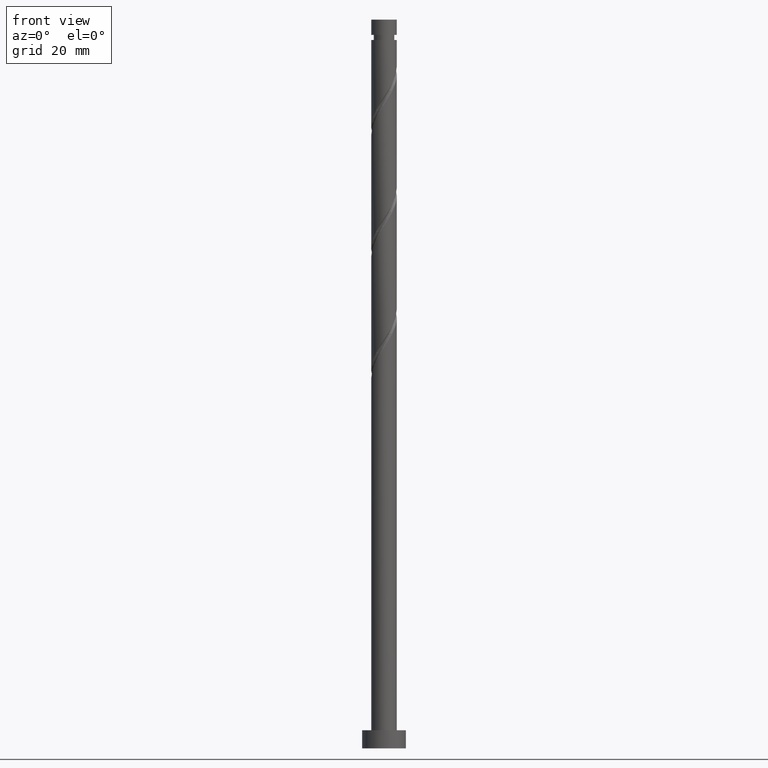
[diagram: clean part render]
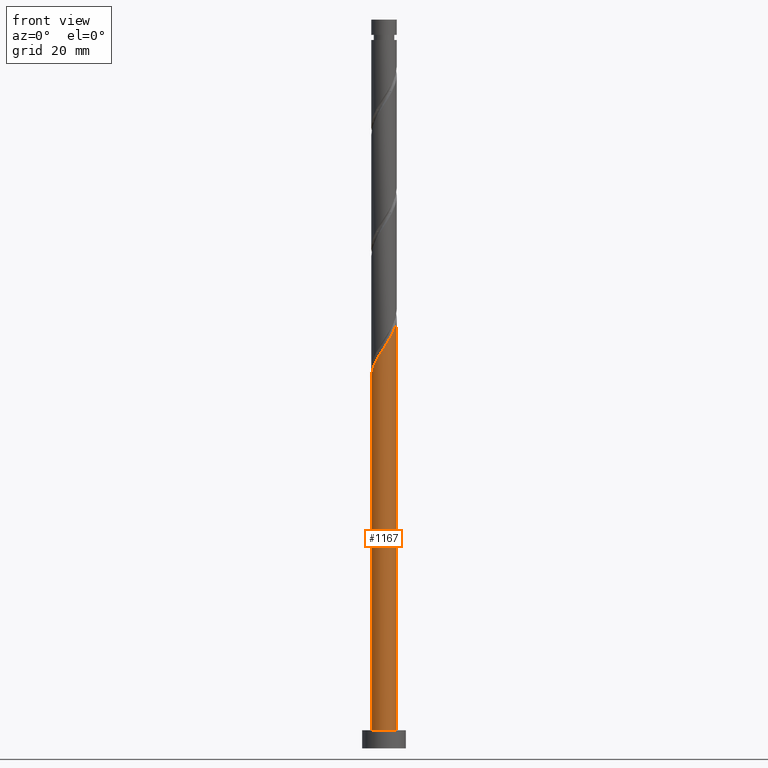
[diagram: same view with one face highlighted and labeled with its STEP entity id]
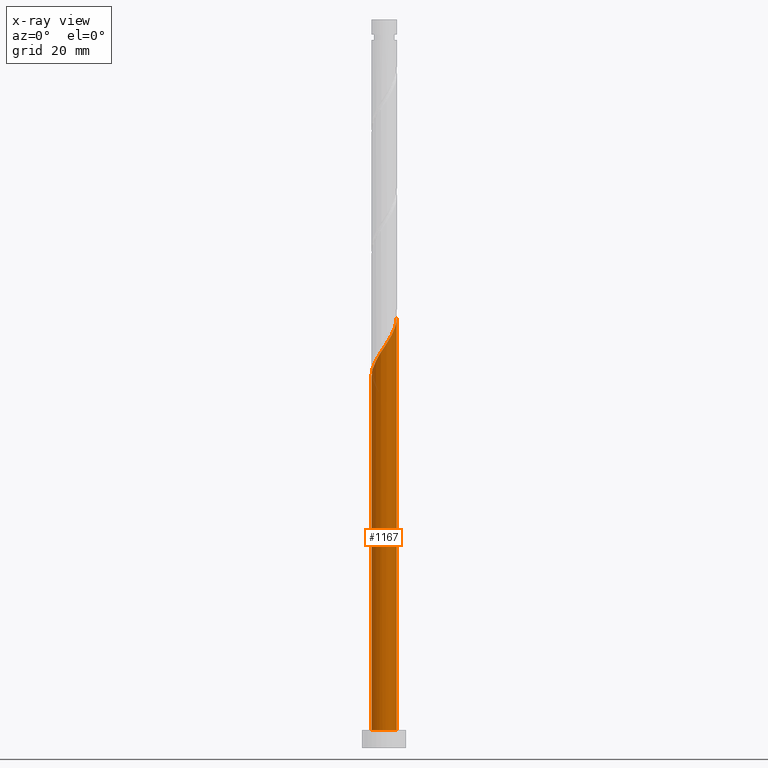
[diagram: x-ray of the same camera — body ghosted, the highlighted face saturated]
A machine part, front view. The second image highlights one B-rep face of the part: STEP entity #1167.
The next image is the same camera in x-ray: the body ghosted, the highlighted face saturated — about 0% of this face is hidden behind the body in this view.
In plain terms, the highlighted cylindrical surface (edge-blend (fillet) strip) has radius 3.5 mm, axis along (-0, -0, -1).
Its self-contained STEP definition (entity closure, byte-faithful):
#11 = DIRECTION ( 'NONE',  ( -0.000000000000000000, -0.000000000000000000, -1.000000000000000000 ) ) ;
#39 = CARTESIAN_POINT ( 'NONE',  ( -3.500000000000000000, 0.000000000000000000, 200.0000000000000000 ) ) ;
#70 = CARTESIAN_POINT ( 'NONE',  ( -3.500000000000004885, -2.272975235430241363E-15, 101.6620316862301650 ) ) ;
#132 =( BOUNDED_CURVE ( )  B_SPLINE_CURVE ( 2, ( #70, #751, #606, #1551, #182, #764, #1542, #1134, #1659, #345, #1023, #620, #477, #1008, #196, #1270, #1288, #463, #1150, #1669, #1521, #316, #734, #595, #1589, #660, #1305 ),
 .UNSPECIFIED., .F., .T. ) 
 B_SPLINE_CURVE_WITH_KNOTS ( ( 3, 2, 2, 2, 2, 2, 2, 2, 2, 2, 2, 2, 2, 3 ),
 ( 0.05453176698144624607, 0.06250000000000000000, 0.07291666666666662966, 0.08333333333333337034, 0.09375000000000000000, 0.1041666666666666297, 0.1145833333333333703, 0.1250000000000000000, 0.1354166666666666297, 0.1458333333333333703, 0.1562500000000000000, 0.1666666666666666297, 0.1770833333333333703, 0.1795317669814462391 ),
 .UNSPECIFIED. ) 
 CURVE ( )  GEOMETRIC_REPRESENTATION_ITEM ( )  RATIONAL_B_SPLINE_CURVE ( ( 0.9062941362546492741, 0.9031415850403534673, 0.9090909090909288226, 0.9013135103398473014, 0.9090909090909288226, 0.9013135103398473014, 0.9090909090909288226, 0.9013135103398473014, 0.9090909090909288226, 0.9013135103398473014, 0.9090909090909288226, 0.9013135103398473014, 0.9090909090909288226, 0.9013135103398473014, 0.9090909090909288226, 0.9013135103398473014, 0.9090909090909288226, 0.9013135103398473014, 0.9090909090909288226, 0.9013135103398473014, 0.9090909090909288226, 0.9013135103398473014, 0.9090909090909288226, 0.9013135103398473014, 0.9090909090909288226, 0.9072628343904225456, 0.9062941362546491630 ) ) 
 REPRESENTATION_ITEM ( '' )  );
#177 = EDGE_LOOP ( 'NONE', ( #1480, #990, #571, #522 ) ) ;
#182 = CARTESIAN_POINT ( 'NONE',  ( -3.132860395318851854, -1.560508168335766666, 104.1144872303291322 ) ) ;
#196 = CARTESIAN_POINT ( 'NONE',  ( 0.6964912059746349859, -3.430000000000005045, 111.0589316747736035 ) ) ;
#316 = CARTESIAN_POINT ( 'NONE',  ( 3.172338736701781681, -1.548737742842094312, 115.9200427858846751 ) ) ;
#345 = CARTESIAN_POINT ( 'NONE',  ( -1.548737742842094312, -3.172338736701781681, 107.5867094525513750 ) ) ;
#348 = VERTEX_POINT ( 'NONE', #1647 ) ;
#372 = CYLINDRICAL_SURFACE ( 'NONE', #1016, 3.500000000000000000 ) ;
#405 = DIRECTION ( 'NONE',  ( 0.000000000000000000, 0.000000000000000000, 1.000000000000000000 ) ) ;
#457 = DIRECTION ( 'NONE',  ( -0.000000000000000000, -0.000000000000000000, -1.000000000000000000 ) ) ;
#461 = AXIS2_PLACEMENT_3D ( 'NONE', #1738, #405, #796 ) ;
#463 = CARTESIAN_POINT ( 'NONE',  ( 1.972957063972127889, -2.927415597451915819, 113.1422650081069463 ) ) ;
#477 = CARTESIAN_POINT ( 'NONE',  ( -0.2149904810675291877, -3.493390773024167117, 109.6700427858847036 ) ) ;
#514 = CIRCLE ( 'NONE', #461, 3.500000000000000000 ) ;
#522 = ORIENTED_EDGE ( 'NONE', *, *, #1453, .T. ) ;
#536 = CARTESIAN_POINT ( 'NONE',  ( -3.500000000000000000, 0.000000000000000000, 5.000000000000000000 ) ) ;
#555 = CARTESIAN_POINT ( 'NONE',  ( 3.500000000000000000, 4.286263797015736595E-16, 200.0000000000000000 ) ) ;
#571 = ORIENTED_EDGE ( 'NONE', *, *, #1414, .T. ) ;
#594 = VECTOR ( 'NONE', #11, 1000.000000000000000 ) ;
#595 = CARTESIAN_POINT ( 'NONE',  ( 3.465086739234110702, -0.6749041013849255144, 117.3089316747736035 ) ) ;
#606 = CARTESIAN_POINT ( 'NONE',  ( -3.430000000000005045, -0.6964912059746350970, 102.7255983414402607 ) ) ;
#620 = CARTESIAN_POINT ( 'NONE',  ( -0.6749041013849236270, -3.465086739234110702, 108.9755983414402465 ) ) ;
#652 = EDGE_CURVE ( 'NONE', #1411, #1112, #132, .T. ) ;
#660 = CARTESIAN_POINT ( 'NONE',  ( 3.500000000000004885, -0.1075968308018633579, 118.1655346648687157 ) ) ;
#693 = LINE ( 'NONE', #555, #594 ) ;
#722 = CARTESIAN_POINT ( 'NONE',  ( -3.500000000000004885, -2.272975235430241363E-15, 101.6620316862301792 ) ) ;
#734 = CARTESIAN_POINT ( 'NONE',  ( 3.318712737967946413, -1.111820922113510024, 116.6144872303291606 ) ) ;
#751 = CARTESIAN_POINT ( 'NONE',  ( -3.500000000000005773, -0.3517632353407214030, 102.1954580554194223 ) ) ;
#764 = CARTESIAN_POINT ( 'NONE',  ( -2.927415597451915819, -1.972957063972129221, 104.8089316747735893 ) ) ;
#771 = FACE_OUTER_BOUND ( 'NONE', #177, .T. ) ;
#796 = DIRECTION ( 'NONE',  ( 1.000000000000000000, 0.000000000000000000, 0.000000000000000000 ) ) ;
#906 = CARTESIAN_POINT ( 'NONE',  ( 0.000000000000000000, 0.000000000000000000, 200.0000000000000000 ) ) ;
#907 = EDGE_CURVE ( 'NONE', #1112, #348, #693, .T. ) ;
#990 = ORIENTED_EDGE ( 'NONE', *, *, #652, .F. ) ;
#1008 = CARTESIAN_POINT ( 'NONE',  ( 0.2449231392498654736, -3.521694806814223089, 110.3644872303291464 ) ) ;
#1016 = AXIS2_PLACEMENT_3D ( 'NONE', #906, #1432, #1586 ) ;
#1023 = CARTESIAN_POINT ( 'NONE',  ( -1.111820922113509580, -3.318712737967946413, 108.2811538969958463 ) ) ;
#1112 = VERTEX_POINT ( 'NONE', #1170 ) ;
#1134 = CARTESIAN_POINT ( 'NONE',  ( -2.317027466534708591, -2.663401091800862375, 106.1978205636624892 ) ) ;
#1150 = CARTESIAN_POINT ( 'NONE',  ( 2.318179077886496575, -2.622221531993313093, 113.8367094525513608 ) ) ;
#1167 = ADVANCED_FACE ( 'NONE', ( #771 ), #372, .T. ) ;
#1170 = CARTESIAN_POINT ( 'NONE',  ( 3.500000000000004885, 4.486135333086002626E-17, 118.3286983528968648 ) ) ;
#1237 = LINE ( 'NONE', #39, #1747 ) ;
#1270 = CARTESIAN_POINT ( 'NONE',  ( 1.148059272699402555, -3.338305193185787889, 111.7533761192180606 ) ) ;
#1288 = CARTESIAN_POINT ( 'NONE',  ( 1.560508168335765333, -3.132860395318852298, 112.4478205636624750 ) ) ;
#1305 = CARTESIAN_POINT ( 'NONE',  ( 3.500000000000004885, 4.486135333086002626E-17, 118.3286983528968648 ) ) ;
#1392 = VERTEX_POINT ( 'NONE', #536 ) ;
#1411 = VERTEX_POINT ( 'NONE', #722 ) ;
#1414 = EDGE_CURVE ( 'NONE', #1411, #1392, #1237, .T. ) ;
#1432 = DIRECTION ( 'NONE',  ( -0.000000000000000000, -0.000000000000000000, -1.000000000000000000 ) ) ;
#1453 = EDGE_CURVE ( 'NONE', #1392, #348, #514, .T. ) ;
#1480 = ORIENTED_EDGE ( 'NONE', *, *, #907, .F. ) ;
#1521 = CARTESIAN_POINT ( 'NONE',  ( 2.917869914251321362, -1.932882604688402672, 115.2255983414402607 ) ) ;
#1542 = CARTESIAN_POINT ( 'NONE',  ( -2.622221531993312649, -2.318179077886495687, 105.5033761192180322 ) ) ;
#1551 = CARTESIAN_POINT ( 'NONE',  ( -3.338305193185787889, -1.148059272699402777, 103.4200427858846609 ) ) ;
#1586 = DIRECTION ( 'NONE',  ( -1.000000000000000000, 0.000000000000000000, 0.000000000000000000 ) ) ;
#1589 = CARTESIAN_POINT ( 'NONE',  ( 3.493390773024167117, -0.2149904810675309919, 118.0033761192180464 ) ) ;
#1647 = CARTESIAN_POINT ( 'NONE',  ( 3.500000000000000000, 4.286263797015736595E-16, 5.000000000000000000 ) ) ;
#1659 = CARTESIAN_POINT ( 'NONE',  ( -1.932882604688401118, -2.917869914251321806, 106.8922650081069463 ) ) ;
#1669 = CARTESIAN_POINT ( 'NONE',  ( 2.663401091800862375, -2.317027466534708591, 114.5311538969958036 ) ) ;
#1738 = CARTESIAN_POINT ( 'NONE',  ( 0.000000000000000000, 0.000000000000000000, 5.000000000000000000 ) ) ;
#1747 = VECTOR ( 'NONE', #457, 1000.000000000000000 ) ;